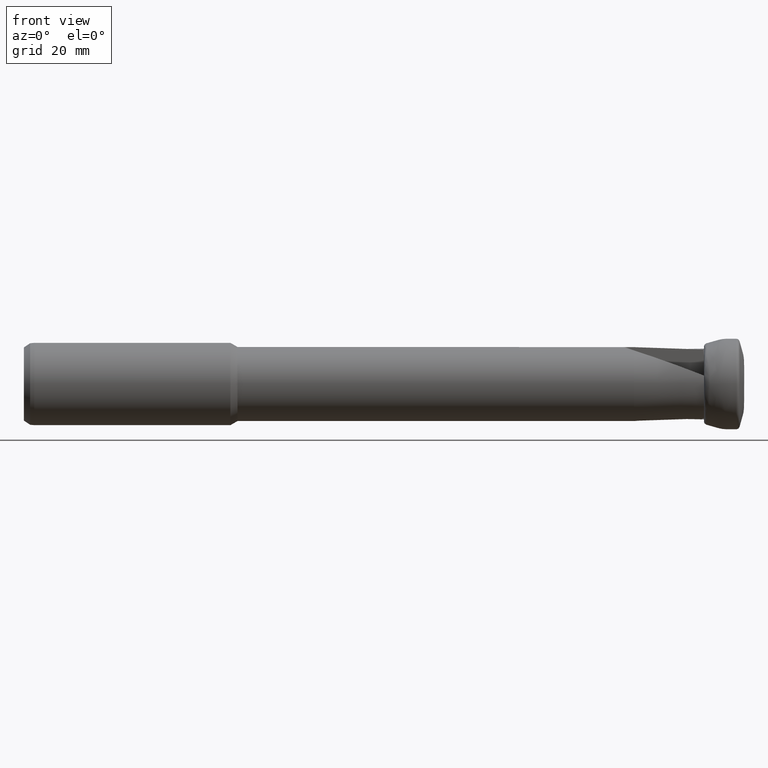
[diagram: clean part render]
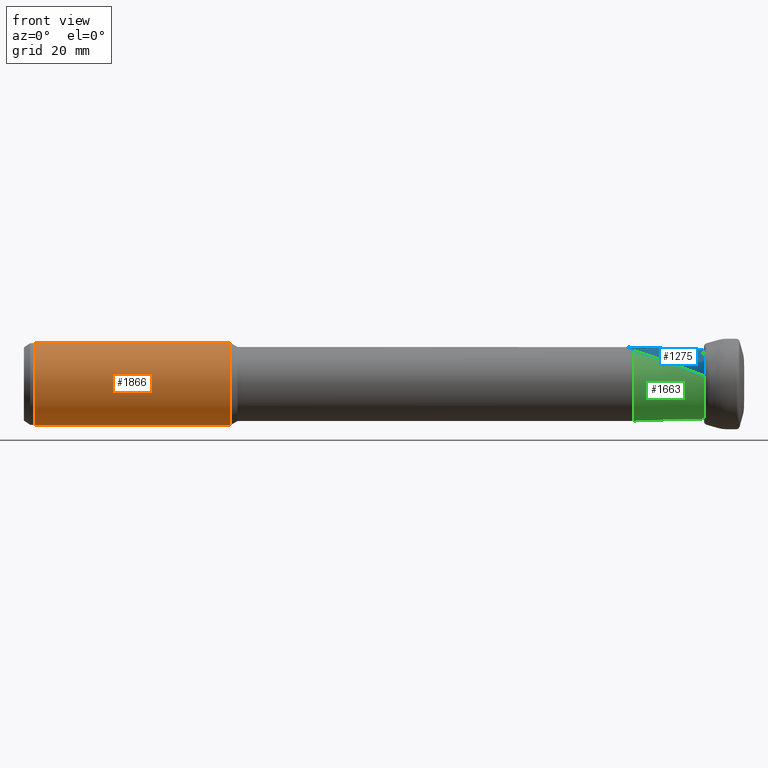
[diagram: same view with three faces highlighted in distinct colors, each labeled with its STEP entity id]
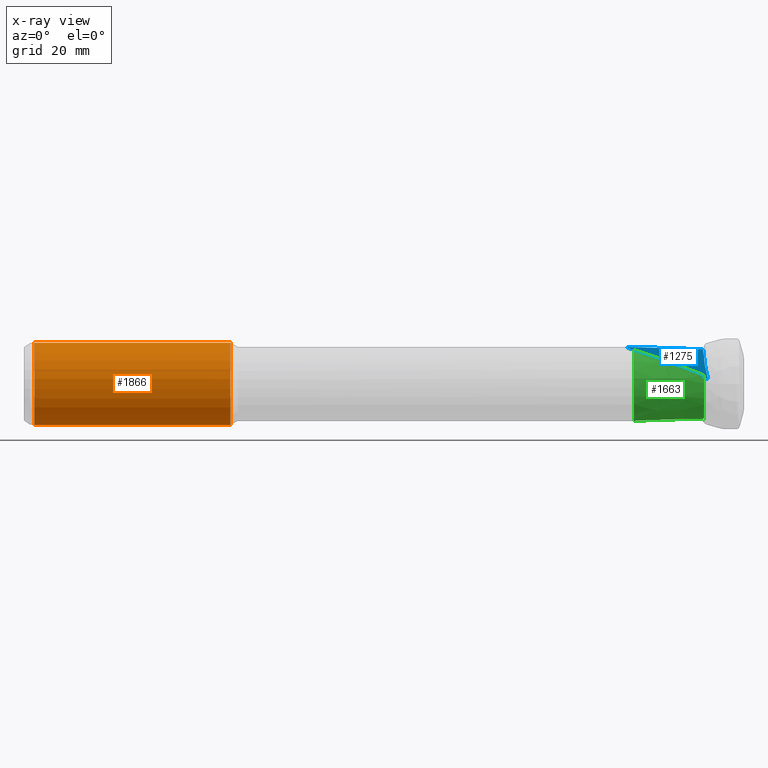
[diagram: x-ray of the same camera — body ghosted, the three highlighted faces saturated]
A machine part, front view with three faces highlighted in distinct colors.
The next image is the same camera in x-ray (body ghosted, the three faces saturated) — at least one of them is partly hidden behind the body in this view.
Their STEP definitions:

[orange] entity #1866 — the highlighted cylindrical surface (bore or boss wall) has radius 10 mm, axis along (-1, -0, -0).
#12 = DIRECTION ( 'NONE',  ( 0.0000000000000000000, 0.0000000000000000000, 1.000000000000000000 ) ) ;
#147 = CARTESIAN_POINT ( 'NONE',  ( -114.0500000000000100, 8.100000000000015600, 5.864298764558278700 ) ) ;
#160 = VERTEX_POINT ( 'NONE', #485 ) ;
#259 = LINE ( 'NONE', #147, #1324 ) ;
#272 = CYLINDRICAL_SURFACE ( 'NONE', #1473, 10.00000000000000000 ) ;
#297 = CARTESIAN_POINT ( 'NONE',  ( -114.0500000000000100, 8.100000000000015600, -5.864298764558278700 ) ) ;
#321 = FACE_OUTER_BOUND ( 'NONE', #2454, .T. ) ;
#351 =( BOUNDED_CURVE ( )  B_SPLINE_CURVE ( 3, ( #775, #1416, #993, #2480 ),
 .UNSPECIFIED., .F., .T. ) 
 B_SPLINE_CURVE_WITH_KNOTS ( ( 4, 4 ),
 ( 2.514948441949054600, 3.768236865230531600 ),
 .UNSPECIFIED. ) 
 CURVE ( )  GEOMETRIC_REPRESENTATION_ITEM ( )  RATIONAL_B_SPLINE_CURVE ( ( 1.000000000000000000, 0.8733333333333341800, 0.8733333333333341800, 1.000000000000000000 ) ) 
 REPRESENTATION_ITEM ( '' )  );
#352 = EDGE_CURVE ( 'NONE', #2365, #1698, #816, .T. ) ;
#365 = CARTESIAN_POINT ( 'NONE',  ( -157.2251908396946800, 10.72519083969464600, 2.238281971205450500 ) ) ;
#366 = DIRECTION ( 'NONE',  ( -1.000000000000000000, -0.0000000000000000000, -0.0000000000000000000 ) ) ;
#452 = CARTESIAN_POINT ( 'NONE',  ( -123.8767949192431200, 0.0000000000000000000, 0.0000000000000000000 ) ) ;
#485 = CARTESIAN_POINT ( 'NONE',  ( -154.6000000000000200, 8.100000000000015600, 5.864298764558278700 ) ) ;
#488 = ORIENTED_EDGE ( 'NONE', *, *, #937, .F. ) ;
#529 = FACE_OUTER_BOUND ( 'NONE', #977, .T. ) ;
#658 = CARTESIAN_POINT ( 'NONE',  ( -171.5499999999998100, 0.0000000000000000000, -10.00000000000000000 ) ) ;
#723 = ORIENTED_EDGE ( 'NONE', *, *, #1929, .F. ) ;
#745 = CIRCLE ( 'NONE', #1773, 10.00000000000000000 ) ;
#775 = CARTESIAN_POINT ( 'NONE',  ( -143.5000000000000300, 8.100000000000015600, -5.864298764558281400 ) ) ;
#816 = LINE ( 'NONE', #297, #1389 ) ;
#832 = VERTEX_POINT ( 'NONE', #658 ) ;
#850 = CARTESIAN_POINT ( 'NONE',  ( -123.8767949192431200, 0.0000000000000000000, 10.00000000000000000 ) ) ;
#937 = EDGE_CURVE ( 'NONE', #2035, #2035, #1728, .T. ) ;
#950 = CARTESIAN_POINT ( 'NONE',  ( -114.0500000000000100, 0.0000000000000000000, 0.0000000000000000000 ) ) ;
#971 = CARTESIAN_POINT ( 'NONE',  ( -171.5499999999998100, 0.0000000000000000000, 0.0000000000000000000 ) ) ;
#977 = EDGE_LOOP ( 'NONE', ( #723 ) ) ;
#993 = CARTESIAN_POINT ( 'NONE',  ( -140.8748091603053800, 10.72519083969464600, 2.238281971205448300 ) ) ;
#1004 = CARTESIAN_POINT ( 'NONE',  ( -154.6000000000000200, 8.100000000000015600, -5.864298764558278700 ) ) ;
#1172 = ORIENTED_EDGE ( 'NONE', *, *, #1622, .T. ) ;
#1183 = DIRECTION ( 'NONE',  ( 0.0000000000000000000, 0.0000000000000000000, -1.000000000000000000 ) ) ;
#1214 = CARTESIAN_POINT ( 'NONE',  ( -154.6000000000000200, 8.100000000000015600, -5.864298764558278700 ) ) ;
#1282 = VERTEX_POINT ( 'NONE', #1292 ) ;
#1292 = CARTESIAN_POINT ( 'NONE',  ( -143.5000000000000300, 8.100000000000015600, 5.864298764558281400 ) ) ;
#1324 = VECTOR ( 'NONE', #366, 1000.000000000000000 ) ;
#1389 = VECTOR ( 'NONE', #2409, 1000.000000000000000 ) ;
#1416 = CARTESIAN_POINT ( 'NONE',  ( -140.8748091603053800, 10.72519083969465100, -2.238281971205450000 ) ) ;
#1473 = AXIS2_PLACEMENT_3D ( 'NONE', #950, #2226, #2432 ) ;
#1597 = EDGE_CURVE ( 'NONE', #1698, #1282, #351, .T. ) ;
#1622 = EDGE_CURVE ( 'NONE', #160, #2365, #1880, .T. ) ;
#1698 = VERTEX_POINT ( 'NONE', #1814 ) ;
#1717 = ORIENTED_EDGE ( 'NONE', *, *, #2330, .T. ) ;
#1728 = CIRCLE ( 'NONE', #1906, 10.00000000000000000 ) ;
#1773 = AXIS2_PLACEMENT_3D ( 'NONE', #971, #2453, #1183 ) ;
#1776 = ORIENTED_EDGE ( 'NONE', *, *, #352, .T. ) ;
#1800 = ORIENTED_EDGE ( 'NONE', *, *, #1597, .T. ) ;
#1814 = CARTESIAN_POINT ( 'NONE',  ( -143.5000000000000300, 8.100000000000015600, -5.864298764558281400 ) ) ;
#1850 = CARTESIAN_POINT ( 'NONE',  ( -154.6000000000000200, 8.100000000000015600, 5.864298764558278700 ) ) ;
#1861 = EDGE_LOOP ( 'NONE', ( #1172, #1776, #1800, #1717 ) ) ;
#1866 = ADVANCED_FACE ( 'NONE', ( #321, #529, #2710 ), #272, .T. ) ;
#1880 =( BOUNDED_CURVE ( )  B_SPLINE_CURVE ( 3, ( #1850, #365, #2274, #1004 ),
 .UNSPECIFIED., .F., .F. ) 
 B_SPLINE_CURVE_WITH_KNOTS ( ( 4, 4 ),
 ( 5.656541095538847800, 6.909829518820324700 ),
 .UNSPECIFIED. ) 
 CURVE ( )  GEOMETRIC_REPRESENTATION_ITEM ( )  RATIONAL_B_SPLINE_CURVE ( ( 1.000000000000000000, 0.8733333333333341800, 0.8733333333333341800, 1.000000000000000000 ) ) 
 REPRESENTATION_ITEM ( '' )  );
#1906 = AXIS2_PLACEMENT_3D ( 'NONE', #452, #1943, #12 ) ;
#1929 = EDGE_CURVE ( 'NONE', #832, #832, #745, .T. ) ;
#1943 = DIRECTION ( 'NONE',  ( 1.000000000000000000, -0.0000000000000000000, -0.0000000000000000000 ) ) ;
#2035 = VERTEX_POINT ( 'NONE', #850 ) ;
#2226 = DIRECTION ( 'NONE',  ( -1.000000000000000000, -0.0000000000000000000, -0.0000000000000000000 ) ) ;
#2274 = CARTESIAN_POINT ( 'NONE',  ( -157.2251908396946800, 10.72519083969464600, -2.238281971205449100 ) ) ;
#2330 = EDGE_CURVE ( 'NONE', #1282, #160, #259, .T. ) ;
#2365 = VERTEX_POINT ( 'NONE', #1214 ) ;
#2409 = DIRECTION ( 'NONE',  ( 1.000000000000000000, 0.0000000000000000000, 0.0000000000000000000 ) ) ;
#2432 = DIRECTION ( 'NONE',  ( 0.0000000000000000000, 0.0000000000000000000, 1.000000000000000000 ) ) ;
#2453 = DIRECTION ( 'NONE',  ( -1.000000000000000000, 0.0000000000000000000, 0.0000000000000000000 ) ) ;
#2454 = EDGE_LOOP ( 'NONE', ( #488 ) ) ;
#2480 = CARTESIAN_POINT ( 'NONE',  ( -143.5000000000000300, 8.100000000000015600, 5.864298764558281400 ) ) ;
#2710 = FACE_BOUND ( 'NONE', #1861, .T. ) ;

[blue] entity #1275 — the highlighted planar face has unit normal (0.0698, 0.9976, 0).
#5 = CARTESIAN_POINT ( 'NONE',  ( -14.43659615482924800, -1.697087980396272600, 8.594357406676120800 ) ) ;
#8 = DIRECTION ( 'NONE',  ( 0.9975640502598253100, -0.06975647374411167400, 0.0000000000000000000 ) ) ;
#9 = DIRECTION ( 'NONE',  ( 0.06975647374411163300, 0.9975640502598252000, 7.211082859309714300E-015 ) ) ;
#23 = CARTESIAN_POINT ( 'NONE',  ( -6.196387687767171700, -2.273299488247689600, 2.903337212860550600 ) ) ;
#29 = CARTESIAN_POINT ( 'NONE',  ( -7.990645933201791200, -2.147832729341103700, 1.211875310195761600 ) ) ;
#56 = LINE ( 'NONE', #2325, #492 ) ;
#75 = CARTESIAN_POINT ( 'NONE',  ( -8.043740534041816700, -2.144119993172955300, 2.159399996568252400 ) ) ;
#113 = EDGE_CURVE ( 'NONE', #249, #296, #1423, .T. ) ;
#152 = EDGE_CURVE ( 'NONE', #2320, #1019, #532, .T. ) ;
#213 = CARTESIAN_POINT ( 'NONE',  ( -8.798537731779934000, -2.091339431471273400, 6.145502439222072500 ) ) ;
#226 = CARTESIAN_POINT ( 'NONE',  ( -9.038898121617224400, -2.074531795692470500, 8.378725703206246300 ) ) ;
#230 = VERTEX_POINT ( 'NONE', #2355 ) ;
#249 = VERTEX_POINT ( 'NONE', #1928 ) ;
#296 = VERTEX_POINT ( 'NONE', #1497 ) ;
#336 = ORIENTED_EDGE ( 'NONE', *, *, #1877, .F. ) ;
#357 = CARTESIAN_POINT ( 'NONE',  ( -8.230425862313705200, -2.131065683330289200, 3.038102834851356300 ) ) ;
#407 = CARTESIAN_POINT ( 'NONE',  ( -27.10722892770530400, -0.8110710252822659300, 8.963496661929990900 ) ) ;
#411 = EDGE_CURVE ( 'NONE', #1316, #296, #750, .T. ) ;
#431 = CARTESIAN_POINT ( 'NONE',  ( -8.797003779934444300, -2.091446695833509000, 6.780815029007709600 ) ) ;
#441 = CARTESIAN_POINT ( 'NONE',  ( -20.03129133128358000, -1.305868782911164800, 8.786591144688126000 ) ) ;
#492 = VECTOR ( 'NONE', #1922, 1000.000000000000000 ) ;
#506 =( BOUNDED_CURVE ( )  B_SPLINE_CURVE ( 3, ( #226, #5, #441, #1935 ),
 .UNSPECIFIED., .F., .T. ) 
 B_SPLINE_CURVE_WITH_KNOTS ( ( 4, 4 ),
 ( 4.170666904502862600, 4.298878013540572400 ),
 .UNSPECIFIED. ) 
 CURVE ( )  GEOMETRIC_REPRESENTATION_ITEM ( )  RATIONAL_B_SPLINE_CURVE ( ( 1.000000000000000000, 0.9986306283449103400, 0.9986306283449103400, 1.000000000000000000 ) ) 
 REPRESENTATION_ITEM ( '' )  );
#532 = LINE ( 'NONE', #920, #2712 ) ;
#549 = B_SPLINE_CURVE_WITH_KNOTS ( 'NONE', 3,
 ( #620, #1904, #1062, #2546, #1273, #2752, #1490, #213, #1704, #431 ),
 .UNSPECIFIED., .F., .F.,
 ( 4, 2, 2, 2, 4 ),
 ( 0.002573951404127557000, 0.003524067614415349800, 0.004474183824703143900, 0.005424300034990937200, 0.006374416245278731300 ),
 .UNSPECIFIED. ) ;
#605 = CARTESIAN_POINT ( 'NONE',  ( -26.45337205464825200, -0.8567931518824895000, 8.959241826816027700 ) ) ;
#620 = CARTESIAN_POINT ( 'NONE',  ( -8.230425862313705200, -2.131065683330289200, 3.038102834851356300 ) ) ;
#732 = DIRECTION ( 'NONE',  ( 0.1496681375759295100, -0.01046581571019826600, -0.9886808965971137800 ) ) ;
#750 = CIRCLE ( 'NONE', #943, 1.995706005997576900 ) ;
#786 = CARTESIAN_POINT ( 'NONE',  ( -27.76153232195649800, -0.7653176748784714700, 8.967401455077075300 ) ) ;
#814 = LINE ( 'NONE', #1164, #1976 ) ;
#920 = CARTESIAN_POINT ( 'NONE',  ( -7.990645933201791200, -2.147832729341103300, 1.211875310195760000 ) ) ;
#943 = AXIS2_PLACEMENT_3D ( 'NONE', #23, #2143, #8 ) ;
#959 = CARTESIAN_POINT ( 'NONE',  ( -4.528737863002050700, -2.389912923931698100, 10.08034785129285600 ) ) ;
#1019 = VERTEX_POINT ( 'NONE', #29 ) ;
#1043 =( BOUNDED_CURVE ( )  B_SPLINE_CURVE ( 3, ( #2728, #605, #407, #1892 ),
 .UNSPECIFIED., .F., .T. ) 
 B_SPLINE_CURVE_WITH_KNOTS ( ( 4, 4 ),
 ( 1.470351804282943500, 1.485658212942470000 ),
 .UNSPECIFIED. ) 
 CURVE ( )  GEOMETRIC_REPRESENTATION_ITEM ( )  RATIONAL_B_SPLINE_CURVE ( ( 1.000000000000000000, 0.9999804762497905800, 0.9999804762497905800, 1.000000000000000000 ) ) 
 REPRESENTATION_ITEM ( '' )  );
#1062 = CARTESIAN_POINT ( 'NONE',  ( -8.373642599520080100, -2.121050993480502600, 3.656027857401559000 ) ) ;
#1117 = ORIENTED_EDGE ( 'NONE', *, *, #1761, .T. ) ;
#1133 = VERTEX_POINT ( 'NONE', #2376 ) ;
#1162 = ORIENTED_EDGE ( 'NONE', *, *, #2503, .T. ) ;
#1164 = CARTESIAN_POINT ( 'NONE',  ( -9.436876848126418700, -2.046702412126367900, 11.00770185353797900 ) ) ;
#1171 = DIRECTION ( 'NONE',  ( -0.9975640502598252000, 0.06975647374411163300, -1.785126230389293200E-014 ) ) ;
#1273 = CARTESIAN_POINT ( 'NONE',  ( -8.602741790603850800, -2.105030817429181000, 4.581200776816064700 ) ) ;
#1275 = ADVANCED_FACE ( 'NONE', ( #2641 ), #1720, .F. ) ;
#1316 = VERTEX_POINT ( 'NONE', #2741 ) ;
#1399 = ORIENTED_EDGE ( 'NONE', *, *, #113, .T. ) ;
#1407 = CARTESIAN_POINT ( 'NONE',  ( -25.80000000000000400, -0.9024813766770126700, 8.954637198946260300 ) ) ;
#1423 = B_SPLINE_CURVE_WITH_KNOTS ( 'NONE', 3,
 ( #1997, #1566, #2202, #75 ),
 .UNSPECIFIED., .F., .F.,
 ( 4, 4 ),
 ( 0.0006595401244244664100, 0.001675915257897452600 ),
 .UNSPECIFIED. ) ;
#1475 = ORIENTED_EDGE ( 'NONE', *, *, #2699, .T. ) ;
#1480 = ORIENTED_EDGE ( 'NONE', *, *, #411, .F. ) ;
#1490 = CARTESIAN_POINT ( 'NONE',  ( -8.756819454748420400, -2.094256657583858100, 5.515385341372300400 ) ) ;
#1492 = VERTEX_POINT ( 'NONE', #1407 ) ;
#1497 = CARTESIAN_POINT ( 'NONE',  ( -8.043740534041816700, -2.144119993172955300, 2.159399996568252400 ) ) ;
#1550 = VERTEX_POINT ( 'NONE', #357 ) ;
#1562 = ORIENTED_EDGE ( 'NONE', *, *, #152, .T. ) ;
#1566 = CARTESIAN_POINT ( 'NONE',  ( -7.913267191060828800, -2.153243578091315900, 1.494499706327373300 ) ) ;
#1659 = CIRCLE ( 'NONE', #2518, 9.523298562962326100 ) ;
#1704 = CARTESIAN_POINT ( 'NONE',  ( -8.796336483216437700, -2.091493357765617000, 6.463331020078696200 ) ) ;
#1720 = PLANE ( 'NONE',  #2424 ) ;
#1757 = DIRECTION ( 'NONE',  ( 0.9289711258367762100, -0.06495998921732397400, -0.3644075289595945000 ) ) ;
#1761 = EDGE_CURVE ( 'NONE', #1019, #249, #1659, .T. ) ;
#1784 = ORIENTED_EDGE ( 'NONE', *, *, #2580, .T. ) ;
#1877 = EDGE_CURVE ( 'NONE', #1550, #1316, #814, .T. ) ;
#1892 = CARTESIAN_POINT ( 'NONE',  ( -27.76153232195649800, -0.7653176748784714700, 8.967401455077075300 ) ) ;
#1897 = DIRECTION ( 'NONE',  ( 0.9975640502598252000, -0.06975647374411163300, 0.0000000000000000000 ) ) ;
#1904 = CARTESIAN_POINT ( 'NONE',  ( -8.300279195232292300, -2.126181062455661000, 3.347276162400757600 ) ) ;
#1922 = DIRECTION ( 'NONE',  ( 0.1496681375759295100, -0.01046581571019826600, -0.9886808965971137800 ) ) ;
#1928 = CARTESIAN_POINT ( 'NONE',  ( -7.856630109959724900, -2.157204028610397300, 1.160471434996636100 ) ) ;
#1935 = CARTESIAN_POINT ( 'NONE',  ( -25.80000000000000400, -0.9024813766770126700, 8.954637198946260300 ) ) ;
#1976 = VECTOR ( 'NONE', #732, 1000.000000000000000 ) ;
#1997 = CARTESIAN_POINT ( 'NONE',  ( -7.856630109959724900, -2.157204028610397300, 1.160471434996636100 ) ) ;
#2032 = ORIENTED_EDGE ( 'NONE', *, *, #2673, .F. ) ;
#2143 = DIRECTION ( 'NONE',  ( -0.06975647374411166100, -0.9975640502598252000, -7.207342361814639300E-015 ) ) ;
#2202 = CARTESIAN_POINT ( 'NONE',  ( -7.977773685064902600, -2.148732844615870400, 1.827083847624095800 ) ) ;
#2320 = VERTEX_POINT ( 'NONE', #786 ) ;
#2325 = CARTESIAN_POINT ( 'NONE',  ( -9.436876848126418700, -2.046702412126367900, 11.00770185353797900 ) ) ;
#2355 = CARTESIAN_POINT ( 'NONE',  ( -9.038898121617224400, -2.074531795692470500, 8.378725703206246300 ) ) ;
#2376 = CARTESIAN_POINT ( 'NONE',  ( -8.797003779934444300, -2.091446695833509000, 6.780815029007709600 ) ) ;
#2424 = AXIS2_PLACEMENT_3D ( 'NONE', #2536, #9, #1897 ) ;
#2441 = DIRECTION ( 'NONE',  ( -0.06975647374411163300, -0.9975640502598252000, -7.211082859309712700E-015 ) ) ;
#2488 = EDGE_LOOP ( 'NONE', ( #1117, #1399, #1480, #336, #1784, #2032, #1475, #1162, #1562 ) ) ;
#2503 = EDGE_CURVE ( 'NONE', #1492, #2320, #1043, .T. ) ;
#2518 = AXIS2_PLACEMENT_3D ( 'NONE', #959, #2441, #1171 ) ;
#2536 = CARTESIAN_POINT ( 'NONE',  ( -4.528737863002050700, -2.389912923931698100, 10.08034785129285600 ) ) ;
#2546 = CARTESIAN_POINT ( 'NONE',  ( -8.524117319798531200, -2.110528776013344700, 4.273081045285669800 ) ) ;
#2580 = EDGE_CURVE ( 'NONE', #1550, #1133, #549, .T. ) ;
#2641 = FACE_OUTER_BOUND ( 'NONE', #2488, .T. ) ;
#2673 = EDGE_CURVE ( 'NONE', #230, #1133, #56, .T. ) ;
#2699 = EDGE_CURVE ( 'NONE', #230, #1492, #506, .T. ) ;
#2712 = VECTOR ( 'NONE', #1757, 1000.000000000000000 ) ;
#2728 = CARTESIAN_POINT ( 'NONE',  ( -25.80000000000000400, -0.9024813766770126700, 8.954637198946260300 ) ) ;
#2741 = CARTESIAN_POINT ( 'NONE',  ( -8.164697678731016600, -2.135661845663053200, 2.603914232462494200 ) ) ;
#2752 = CARTESIAN_POINT ( 'NONE',  ( -8.717174388162495900, -2.097028910699498400, 5.202583372982807900 ) ) ;

[green] entity #1663 — the highlighted conical surface has half-angle 1.259 deg.
#21 = CARTESIAN_POINT ( 'NONE',  ( -8.794169598414297800, -2.779087213305302800E-015, 0.0000000000000000000 ) ) ;
#89 = CARTESIAN_POINT ( 'NONE',  ( -25.80000000000000400, 0.9024813766770126700, -8.954637198946260300 ) ) ;
#120 =( BOUNDED_CURVE ( )  B_SPLINE_CURVE ( 3, ( #2313, #1893, #634, #1924 ),
 .UNSPECIFIED., .F., .F. ) 
 B_SPLINE_CURVE_WITH_KNOTS ( ( 4, 4 ),
 ( 4.170666904502862600, 4.298878013540572400 ),
 .UNSPECIFIED. ) 
 CURVE ( )  GEOMETRIC_REPRESENTATION_ITEM ( )  RATIONAL_B_SPLINE_CURVE ( ( 1.000000000000000000, 0.9986306283449103400, 0.9986306283449103400, 1.000000000000000000 ) ) 
 REPRESENTATION_ITEM ( '' )  );
#146 = EDGE_CURVE ( 'NONE', #829, #2339, #680, .T. ) ;
#202 = VERTEX_POINT ( 'NONE', #89 ) ;
#244 = DIRECTION ( 'NONE',  ( -2.010958657376800400E-016, 1.000000000000000000, 0.0000000000000000000 ) ) ;
#276 = CARTESIAN_POINT ( 'NONE',  ( -9.326575159606669300, -1.247926231476449400, -8.549325721681201500 ) ) ;
#284 = CARTESIAN_POINT ( 'NONE',  ( -8.794169598414294200, -0.5485828175346623100, -8.608889851539643700 ) ) ;
#289 = CARTESIAN_POINT ( 'NONE',  ( -8.959957170153153100, 1.820069450899576300, -8.439942492922110500 ) ) ;
#313 = DIRECTION ( 'NONE',  ( 0.0000000000000000000, 0.0000000000000000000, 1.000000000000000000 ) ) ;
#376 = CARTESIAN_POINT ( 'NONE',  ( -8.794169598414308500, -8.383636464189042000, 2.031887600213532900 ) ) ;
#424 = ORIENTED_EDGE ( 'NONE', *, *, #1255, .F. ) ;
#457 = CARTESIAN_POINT ( 'NONE',  ( -9.038898121617224400, 2.074531795692470500, -8.378725703206246300 ) ) ;
#463 = CARTESIAN_POINT ( 'NONE',  ( -25.80000000000000100, 0.0000000000000000000, 0.0000000000000000000 ) ) ;
#476 = CARTESIAN_POINT ( 'NONE',  ( -8.794169598414294200, -0.5485828175346623100, -8.608889851539643700 ) ) ;
#499 = CARTESIAN_POINT ( 'NONE',  ( -9.081332998849537900, -2.081391611823672600, -8.379430001204669400 ) ) ;
#508 = CARTESIAN_POINT ( 'NONE',  ( -8.878324180662653800, 1.563075877482163100, -8.489471193355008400 ) ) ;
#524 = EDGE_CURVE ( 'NONE', #940, #2613, #2575, .T. ) ;
#533 = CARTESIAN_POINT ( 'NONE',  ( -8.050000000000041600, 0.0000000000000000000, 0.0000000000000000000 ) ) ;
#630 = CARTESIAN_POINT ( 'NONE',  ( -8.794169598414297800, -2.294074867546507700, -8.315716931553669900 ) ) ;
#634 = CARTESIAN_POINT ( 'NONE',  ( -20.03129133128358000, 1.305868782911164800, -8.786591144688126000 ) ) ;
#635 = ORIENTED_EDGE ( 'NONE', *, *, #146, .T. ) ;
#649 = CIRCLE ( 'NONE', #1000, 8.999999999999996400 ) ;
#680 =( BOUNDED_CURVE ( )  B_SPLINE_CURVE ( 3, ( #2617, #289, #508, #1354 ),
 .UNSPECIFIED., .F., .F. ) 
 B_SPLINE_CURVE_WITH_KNOTS ( ( 4, 4 ),
 ( 0.9150209243873066400, 1.006416970904366200 ),
 .UNSPECIFIED. ) 
 CURVE ( )  GEOMETRIC_REPRESENTATION_ITEM ( )  RATIONAL_B_SPLINE_CURVE ( ( 1.000000000000000000, 0.9993040180215402300, 0.9993040180215402300, 1.000000000000000000 ) ) 
 REPRESENTATION_ITEM ( '' )  );
#729 = CIRCLE ( 'NONE', #1999, 8.626350768641216900 ) ;
#731 = DIRECTION ( 'NONE',  ( -1.000000000000000000, 0.0000000000000000000, 0.0000000000000000000 ) ) ;
#829 = VERTEX_POINT ( 'NONE', #457 ) ;
#835 = ORIENTED_EDGE ( 'NONE', *, *, #2373, .F. ) ;
#872 = VERTEX_POINT ( 'NONE', #1313 ) ;
#883 = CIRCLE ( 'NONE', #1137, 8.626350768641216900 ) ;
#887 = ORIENTED_EDGE ( 'NONE', *, *, #1041, .T. ) ;
#940 = VERTEX_POINT ( 'NONE', #476 ) ;
#1000 = AXIS2_PLACEMENT_3D ( 'NONE', #463, #1733, #2573 ) ;
#1006 = CARTESIAN_POINT ( 'NONE',  ( -25.80000000000000100, -3.806648132895587900, 8.155331384580421200 ) ) ;
#1041 = EDGE_CURVE ( 'NONE', #872, #202, #649, .T. ) ;
#1106 = CONICAL_SURFACE ( 'NONE', #2233, 8.609999999999999400, 0.02196829629272690300 ) ;
#1127 = CARTESIAN_POINT ( 'NONE',  ( -9.091415794014867700, -0.7585863784920705600, -8.600879803764861700 ) ) ;
#1137 = AXIS2_PLACEMENT_3D ( 'NONE', #21, #1516, #244 ) ;
#1225 = CARTESIAN_POINT ( 'NONE',  ( -8.794169598414297800, -2.779087213305302800E-015, 0.0000000000000000000 ) ) ;
#1255 = EDGE_CURVE ( 'Kante69', #829, #202, #120, .T. ) ;
#1313 = CARTESIAN_POINT ( 'NONE',  ( -25.80000000000000100, -3.806648132895587900, 8.155331384580421200 ) ) ;
#1354 = CARTESIAN_POINT ( 'NONE',  ( -8.794169598414297800, 1.304087664127238300, -8.527208391256076300 ) ) ;
#1443 = DIRECTION ( 'NONE',  ( -2.010958657376800400E-016, 1.000000000000000000, 0.0000000000000000000 ) ) ;
#1516 = DIRECTION ( 'NONE',  ( 1.000000000000000000, 1.225122446274729400E-016, -0.0000000000000000000 ) ) ;
#1551 = CARTESIAN_POINT ( 'NONE',  ( -9.268039297501994500, -1.778962005614183500, -8.452998069570302400 ) ) ;
#1559 = CARTESIAN_POINT ( 'NONE',  ( -8.954514571532639500, -0.6317617663925868500, -8.607119671884133200 ) ) ;
#1653 = CARTESIAN_POINT ( 'NONE',  ( -15.66697050941597900, -7.886262953260661000, 4.725169872093461600 ) ) ;
#1663 = ADVANCED_FACE ( 'NONE', ( #1740 ), #1106, .T. ) ;
#1733 = DIRECTION ( 'NONE',  ( 1.000000000000000000, -0.0000000000000000000, -0.0000000000000000000 ) ) ;
#1740 = FACE_OUTER_BOUND ( 'NONE', #1963, .T. ) ;
#1767 = CARTESIAN_POINT ( 'NONE',  ( -9.320965559269762200, -1.602997295426221500, -8.489791547884552300 ) ) ;
#1786 = CARTESIAN_POINT ( 'NONE',  ( -8.949120021174332300, -2.206948806728315400, -8.343284308291398300 ) ) ;
#1815 = VERTEX_POINT ( 'NONE', #2236 ) ;
#1893 = CARTESIAN_POINT ( 'NONE',  ( -14.43659615482924800, 1.697087980396272600, -8.594357406676120800 ) ) ;
#1921 = ORIENTED_EDGE ( 'NONE', *, *, #524, .T. ) ;
#1924 = CARTESIAN_POINT ( 'NONE',  ( -25.80000000000000400, 0.9024813766770126700, -8.954637198946260300 ) ) ;
#1963 = EDGE_LOOP ( 'NONE', ( #2689, #835, #887, #424, #635, #1991, #1921 ) ) ;
#1991 = ORIENTED_EDGE ( 'NONE', *, *, #2381, .F. ) ;
#1999 = AXIS2_PLACEMENT_3D ( 'NONE', #1225, #2708, #1443 ) ;
#2002 = CARTESIAN_POINT ( 'NONE',  ( -8.794169598414297800, -2.294074867546507700, -8.315716931553669900 ) ) ;
#2151 = EDGE_CURVE ( 'NONE', #1815, #2613, #883, .T. ) ;
#2233 = AXIS2_PLACEMENT_3D ( 'NONE', #533, #731, #313 ) ;
#2236 = CARTESIAN_POINT ( 'NONE',  ( -8.794169598414308500, -8.383636464189042000, 2.031887600213532900 ) ) ;
#2275 = CARTESIAN_POINT ( 'NONE',  ( -8.794169598414297800, 1.304087664127238300, -8.527208391256076300 ) ) ;
#2313 = CARTESIAN_POINT ( 'NONE',  ( -9.038898121617224400, 2.074531795692470500, -8.378725703206246300 ) ) ;
#2339 = VERTEX_POINT ( 'NONE', #2275 ) ;
#2373 = EDGE_CURVE ( 'NONE', #872, #1815, #2616, .T. ) ;
#2381 = EDGE_CURVE ( 'NONE', #940, #2339, #729, .T. ) ;
#2573 = DIRECTION ( 'NONE',  ( 0.0000000000000000000, 0.0000000000000000000, -1.000000000000000000 ) ) ;
#2575 = B_SPLINE_CURVE_WITH_KNOTS ( 'NONE', 3,
 ( #284, #1559, #1127, #2611, #276, #1767, #1551, #499, #1786, #2002 ),
 .UNSPECIFIED., .F., .F.,
 ( 4, 2, 2, 2, 4 ),
 ( 0.0007623013540470884700, 0.001301733715351642700, 0.001841166076656197200, 0.002380598437960751700, 0.002920030799265306000 ),
 .UNSPECIFIED. ) ;
#2611 = CARTESIAN_POINT ( 'NONE',  ( -9.278161530004684500, -1.066727043727638800, -8.572254131034387800 ) ) ;
#2613 = VERTEX_POINT ( 'NONE', #630 ) ;
#2616 =( BOUNDED_CURVE ( )  B_SPLINE_CURVE ( 3, ( #1006, #2700, #1653, #376 ),
 .UNSPECIFIED., .F., .T. ) 
 B_SPLINE_CURVE_WITH_KNOTS ( ( 4, 4 ),
 ( 0.6286591539387579300, 1.548351485323638600 ),
 .UNSPECIFIED. ) 
 CURVE ( )  GEOMETRIC_REPRESENTATION_ITEM ( )  RATIONAL_B_SPLINE_CURVE ( ( 1.000000000000000000, 0.9307471875815631600, 0.9307471875815631600, 1.000000000000000000 ) ) 
 REPRESENTATION_ITEM ( '' )  );
#2617 = CARTESIAN_POINT ( 'NONE',  ( -9.038898121617224400, 2.074531795692470500, -8.378725703206246300 ) ) ;
#2689 = ORIENTED_EDGE ( 'NONE', *, *, #2151, .F. ) ;
#2700 = CARTESIAN_POINT ( 'NONE',  ( -21.75735703917929000, -6.247082306297738100, 6.918190657281954300 ) ) ;
#2708 = DIRECTION ( 'NONE',  ( 1.000000000000000000, 1.225122446274729400E-016, -0.0000000000000000000 ) ) ;